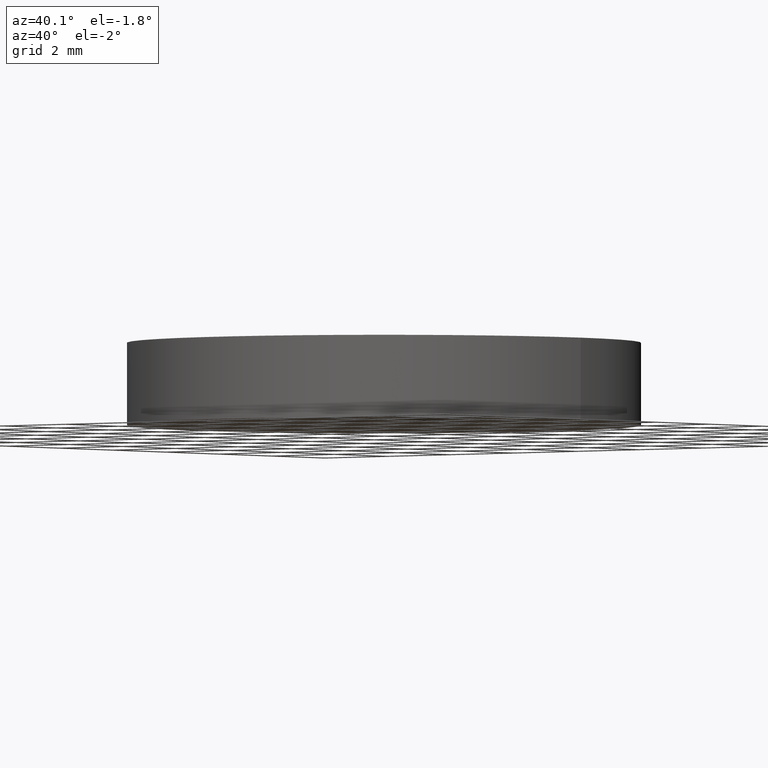
[diagram: clean part render]
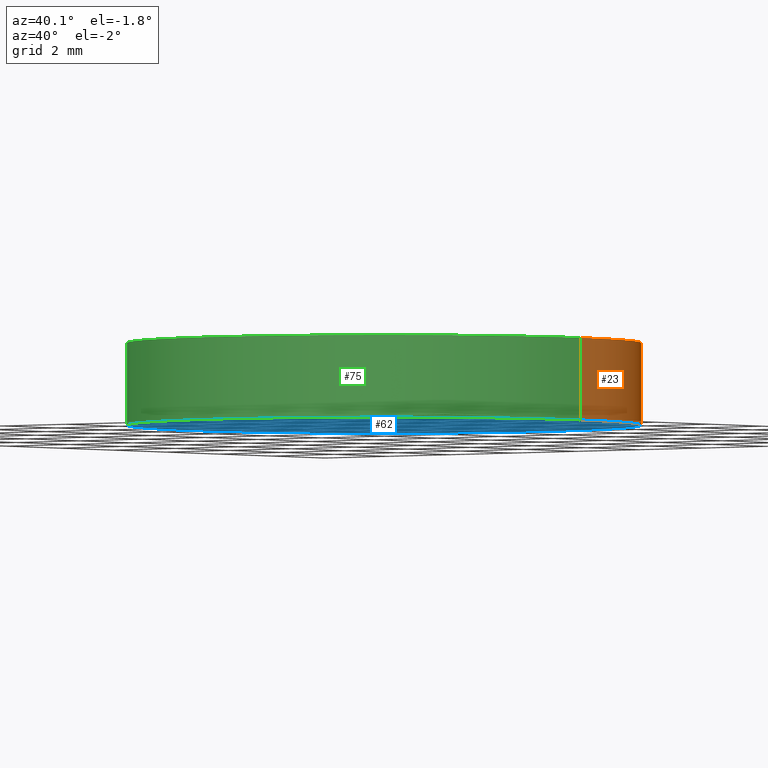
[diagram: same view with three faces highlighted in distinct colors, each labeled with its STEP entity id]
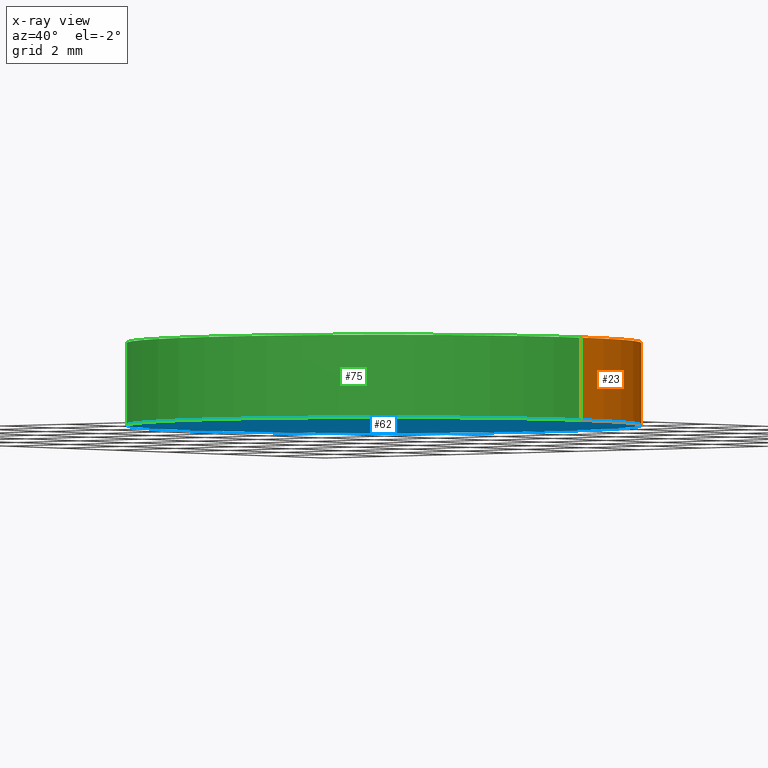
[diagram: x-ray of the same camera — body ghosted, the three highlighted faces saturated]
A machine part, auxiliary view with three faces highlighted in distinct colors.
The next image is the same camera in x-ray (body ghosted, the three faces saturated) — at least one of them is partly hidden behind the body in this view.
Their STEP definitions:

[orange] entity #23 — the highlighted cylindrical surface (partial cylindrical patch) has radius 6.25 mm, axis along (-0, -0, -1).
#5 = CYLINDRICAL_SURFACE ( 'NONE', #43, 6.250000000000000000 ) ;
#6 = CARTESIAN_POINT ( 'NONE',  ( 0.0000000000000000000, 0.0000000000000000000, 0.0000000000000000000 ) ) ;
#8 = DIRECTION ( 'NONE',  ( -0.0000000000000000000, -0.0000000000000000000, -1.000000000000000000 ) ) ;
#10 = DIRECTION ( 'NONE',  ( 1.000000000000000000, 0.0000000000000000000, 0.0000000000000000000 ) ) ;
#11 = EDGE_CURVE ( 'NONE', #44, #73, #42, .T. ) ;
#16 = VECTOR ( 'NONE', #86, 1000.000000000000000 ) ;
#18 = VECTOR ( 'NONE', #8, 1000.000000000000000 ) ;
#19 = EDGE_CURVE ( 'NONE', #73, #78, #67, .T. ) ;
#22 = ORIENTED_EDGE ( 'NONE', *, *, #19, .F. ) ;
#23 = ADVANCED_FACE ( 'NONE', ( #127 ), #5, .T. ) ;
#25 = ORIENTED_EDGE ( 'NONE', *, *, #110, .T. ) ;
#26 = AXIS2_PLACEMENT_3D ( 'NONE', #32, #116, #10 ) ;
#31 = ORIENTED_EDGE ( 'NONE', *, *, #11, .F. ) ;
#32 = CARTESIAN_POINT ( 'NONE',  ( 0.0000000000000000000, 0.0000000000000000000, 2.000000000000000000 ) ) ;
#42 = CIRCLE ( 'NONE', #26, 6.250000000000000000 ) ;
#43 = AXIS2_PLACEMENT_3D ( 'NONE', #60, #131, #72 ) ;
#44 = VERTEX_POINT ( 'NONE', #106 ) ;
#59 = DIRECTION ( 'NONE',  ( 1.000000000000000000, 0.0000000000000000000, 0.0000000000000000000 ) ) ;
#60 = CARTESIAN_POINT ( 'NONE',  ( 0.0000000000000000000, 0.0000000000000000000, 2.000000000000000000 ) ) ;
#65 = CARTESIAN_POINT ( 'NONE',  ( -6.250000000000000000, 0.0000000000000000000, 2.000000000000000000 ) ) ;
#67 = LINE ( 'NONE', #65, #16 ) ;
#69 = DIRECTION ( 'NONE',  ( 0.0000000000000000000, 0.0000000000000000000, 1.000000000000000000 ) ) ;
#70 = CARTESIAN_POINT ( 'NONE',  ( 6.250000000000000000, 7.654042494670957600E-016, 2.000000000000000000 ) ) ;
#72 = DIRECTION ( 'NONE',  ( -1.000000000000000000, 0.0000000000000000000, 0.0000000000000000000 ) ) ;
#73 = VERTEX_POINT ( 'NONE', #104 ) ;
#78 = VERTEX_POINT ( 'NONE', #125 ) ;
#81 = AXIS2_PLACEMENT_3D ( 'NONE', #6, #69, #59 ) ;
#83 = CARTESIAN_POINT ( 'NONE',  ( 6.250000000000000000, 7.654042494670957600E-016, 0.0000000000000000000 ) ) ;
#86 = DIRECTION ( 'NONE',  ( -0.0000000000000000000, -0.0000000000000000000, -1.000000000000000000 ) ) ;
#98 = LINE ( 'NONE', #70, #18 ) ;
#104 = CARTESIAN_POINT ( 'NONE',  ( -6.250000000000000000, 0.0000000000000000000, 2.000000000000000000 ) ) ;
#106 = CARTESIAN_POINT ( 'NONE',  ( 6.250000000000000000, 7.654042494670957600E-016, 2.000000000000000000 ) ) ;
#108 = EDGE_LOOP ( 'NONE', ( #31, #25, #134, #22 ) ) ;
#110 = EDGE_CURVE ( 'NONE', #44, #139, #98, .T. ) ;
#116 = DIRECTION ( 'NONE',  ( 0.0000000000000000000, 0.0000000000000000000, 1.000000000000000000 ) ) ;
#121 = CIRCLE ( 'NONE', #81, 6.250000000000000000 ) ;
#125 = CARTESIAN_POINT ( 'NONE',  ( -6.250000000000000000, 0.0000000000000000000, 0.0000000000000000000 ) ) ;
#127 = FACE_OUTER_BOUND ( 'NONE', #108, .T. ) ;
#128 = EDGE_CURVE ( 'NONE', #139, #78, #121, .T. ) ;
#131 = DIRECTION ( 'NONE',  ( -0.0000000000000000000, -0.0000000000000000000, -1.000000000000000000 ) ) ;
#134 = ORIENTED_EDGE ( 'NONE', *, *, #128, .T. ) ;
#139 = VERTEX_POINT ( 'NONE', #83 ) ;

[blue] entity #62 — the highlighted planar face has unit normal (0, 0, 1).
#2 = DIRECTION ( 'NONE',  ( 0.0000000000000000000, 0.0000000000000000000, 1.000000000000000000 ) ) ;
#4 = AXIS2_PLACEMENT_3D ( 'NONE', #82, #2, #68 ) ;
#6 = CARTESIAN_POINT ( 'NONE',  ( 0.0000000000000000000, 0.0000000000000000000, 0.0000000000000000000 ) ) ;
#20 = DIRECTION ( 'NONE',  ( 1.000000000000000000, 0.0000000000000000000, -0.0000000000000000000 ) ) ;
#21 = ORIENTED_EDGE ( 'NONE', *, *, #140, .F. ) ;
#40 = CARTESIAN_POINT ( 'NONE',  ( 0.0000000000000000000, 0.0000000000000000000, 0.0000000000000000000 ) ) ;
#45 = CIRCLE ( 'NONE', #4, 6.250000000000000000 ) ;
#54 = AXIS2_PLACEMENT_3D ( 'NONE', #40, #94, #20 ) ;
#59 = DIRECTION ( 'NONE',  ( 1.000000000000000000, 0.0000000000000000000, 0.0000000000000000000 ) ) ;
#62 = ADVANCED_FACE ( 'NONE', ( #97 ), #126, .F. ) ;
#68 = DIRECTION ( 'NONE',  ( 1.000000000000000000, 0.0000000000000000000, 0.0000000000000000000 ) ) ;
#69 = DIRECTION ( 'NONE',  ( 0.0000000000000000000, 0.0000000000000000000, 1.000000000000000000 ) ) ;
#78 = VERTEX_POINT ( 'NONE', #125 ) ;
#81 = AXIS2_PLACEMENT_3D ( 'NONE', #6, #69, #59 ) ;
#82 = CARTESIAN_POINT ( 'NONE',  ( 0.0000000000000000000, 0.0000000000000000000, 0.0000000000000000000 ) ) ;
#83 = CARTESIAN_POINT ( 'NONE',  ( 6.250000000000000000, 7.654042494670957600E-016, 0.0000000000000000000 ) ) ;
#90 = ORIENTED_EDGE ( 'NONE', *, *, #128, .F. ) ;
#94 = DIRECTION ( 'NONE',  ( 0.0000000000000000000, 0.0000000000000000000, 1.000000000000000000 ) ) ;
#97 = FACE_OUTER_BOUND ( 'NONE', #117, .T. ) ;
#117 = EDGE_LOOP ( 'NONE', ( #21, #90 ) ) ;
#121 = CIRCLE ( 'NONE', #81, 6.250000000000000000 ) ;
#125 = CARTESIAN_POINT ( 'NONE',  ( -6.250000000000000000, 0.0000000000000000000, 0.0000000000000000000 ) ) ;
#126 = PLANE ( 'NONE',  #54 ) ;
#128 = EDGE_CURVE ( 'NONE', #139, #78, #121, .T. ) ;
#139 = VERTEX_POINT ( 'NONE', #83 ) ;
#140 = EDGE_CURVE ( 'NONE', #78, #139, #45, .T. ) ;

[green] entity #75 — the highlighted cylindrical surface (partial cylindrical patch) has radius 6.25 mm, axis along (-0, -0, -1).
#2 = DIRECTION ( 'NONE',  ( 0.0000000000000000000, 0.0000000000000000000, 1.000000000000000000 ) ) ;
#4 = AXIS2_PLACEMENT_3D ( 'NONE', #82, #2, #68 ) ;
#7 = ORIENTED_EDGE ( 'NONE', *, *, #110, .F. ) ;
#8 = DIRECTION ( 'NONE',  ( -0.0000000000000000000, -0.0000000000000000000, -1.000000000000000000 ) ) ;
#9 = DIRECTION ( 'NONE',  ( -1.000000000000000000, 0.0000000000000000000, 0.0000000000000000000 ) ) ;
#16 = VECTOR ( 'NONE', #86, 1000.000000000000000 ) ;
#18 = VECTOR ( 'NONE', #8, 1000.000000000000000 ) ;
#19 = EDGE_CURVE ( 'NONE', #73, #78, #67, .T. ) ;
#35 = AXIS2_PLACEMENT_3D ( 'NONE', #113, #37, #101 ) ;
#37 = DIRECTION ( 'NONE',  ( 0.0000000000000000000, 0.0000000000000000000, 1.000000000000000000 ) ) ;
#44 = VERTEX_POINT ( 'NONE', #106 ) ;
#45 = CIRCLE ( 'NONE', #4, 6.250000000000000000 ) ;
#50 = DIRECTION ( 'NONE',  ( -0.0000000000000000000, -0.0000000000000000000, -1.000000000000000000 ) ) ;
#55 = CYLINDRICAL_SURFACE ( 'NONE', #84, 6.250000000000000000 ) ;
#64 = ORIENTED_EDGE ( 'NONE', *, *, #140, .T. ) ;
#65 = CARTESIAN_POINT ( 'NONE',  ( -6.250000000000000000, 0.0000000000000000000, 2.000000000000000000 ) ) ;
#67 = LINE ( 'NONE', #65, #16 ) ;
#68 = DIRECTION ( 'NONE',  ( 1.000000000000000000, 0.0000000000000000000, 0.0000000000000000000 ) ) ;
#70 = CARTESIAN_POINT ( 'NONE',  ( 6.250000000000000000, 7.654042494670957600E-016, 2.000000000000000000 ) ) ;
#71 = CARTESIAN_POINT ( 'NONE',  ( 0.0000000000000000000, 0.0000000000000000000, 2.000000000000000000 ) ) ;
#73 = VERTEX_POINT ( 'NONE', #104 ) ;
#75 = ADVANCED_FACE ( 'NONE', ( #85 ), #55, .T. ) ;
#78 = VERTEX_POINT ( 'NONE', #125 ) ;
#79 = CIRCLE ( 'NONE', #35, 6.250000000000000000 ) ;
#82 = CARTESIAN_POINT ( 'NONE',  ( 0.0000000000000000000, 0.0000000000000000000, 0.0000000000000000000 ) ) ;
#83 = CARTESIAN_POINT ( 'NONE',  ( 6.250000000000000000, 7.654042494670957600E-016, 0.0000000000000000000 ) ) ;
#84 = AXIS2_PLACEMENT_3D ( 'NONE', #71, #50, #9 ) ;
#85 = FACE_OUTER_BOUND ( 'NONE', #96, .T. ) ;
#86 = DIRECTION ( 'NONE',  ( -0.0000000000000000000, -0.0000000000000000000, -1.000000000000000000 ) ) ;
#96 = EDGE_LOOP ( 'NONE', ( #7, #105, #135, #64 ) ) ;
#98 = LINE ( 'NONE', #70, #18 ) ;
#101 = DIRECTION ( 'NONE',  ( 1.000000000000000000, 0.0000000000000000000, 0.0000000000000000000 ) ) ;
#104 = CARTESIAN_POINT ( 'NONE',  ( -6.250000000000000000, 0.0000000000000000000, 2.000000000000000000 ) ) ;
#105 = ORIENTED_EDGE ( 'NONE', *, *, #133, .F. ) ;
#106 = CARTESIAN_POINT ( 'NONE',  ( 6.250000000000000000, 7.654042494670957600E-016, 2.000000000000000000 ) ) ;
#110 = EDGE_CURVE ( 'NONE', #44, #139, #98, .T. ) ;
#113 = CARTESIAN_POINT ( 'NONE',  ( 0.0000000000000000000, 0.0000000000000000000, 2.000000000000000000 ) ) ;
#125 = CARTESIAN_POINT ( 'NONE',  ( -6.250000000000000000, 0.0000000000000000000, 0.0000000000000000000 ) ) ;
#133 = EDGE_CURVE ( 'NONE', #73, #44, #79, .T. ) ;
#135 = ORIENTED_EDGE ( 'NONE', *, *, #19, .T. ) ;
#139 = VERTEX_POINT ( 'NONE', #83 ) ;
#140 = EDGE_CURVE ( 'NONE', #78, #139, #45, .T. ) ;